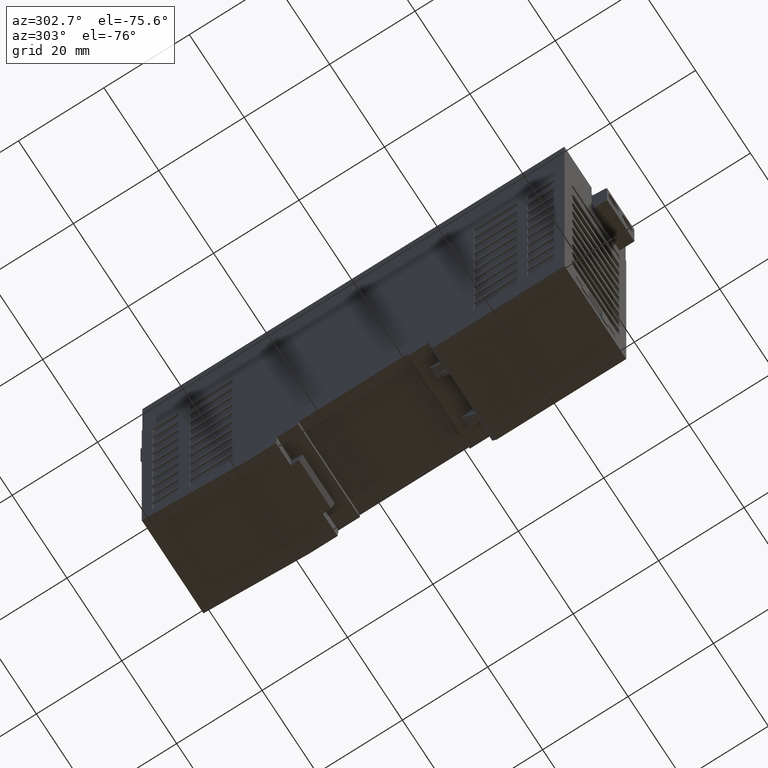
[diagram: clean part render]
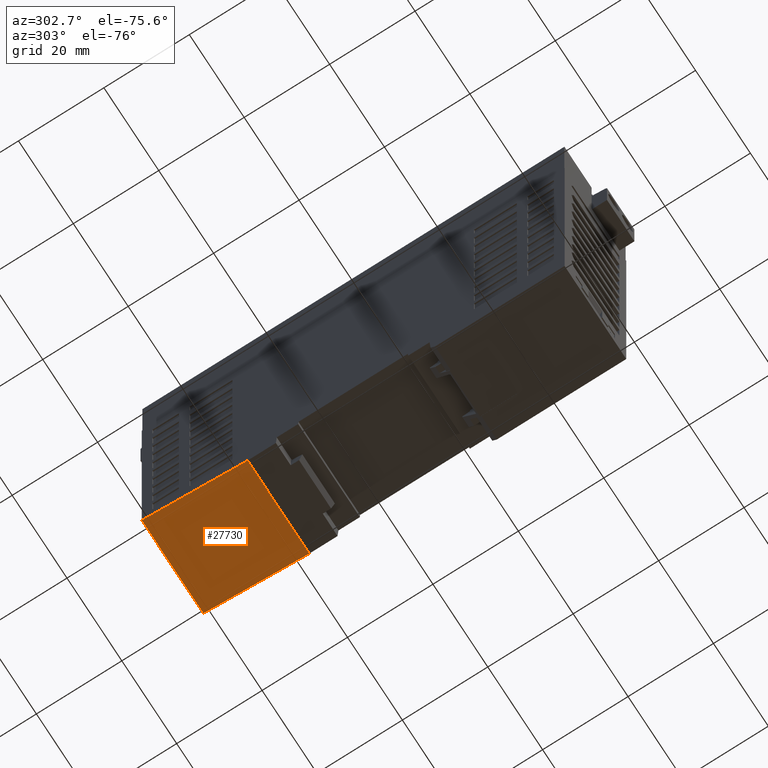
[diagram: same view with one face highlighted and labeled with its STEP entity id]
A machine part, auxiliary view. The second image highlights one B-rep face of the part: STEP entity #27730.
In plain terms, the highlighted planar face has unit normal (0, -0.1908, 0.9816).
Its self-contained STEP definition (entity closure, byte-faithful):
#6920=CARTESIAN_POINT('',(-11.25,0.820631666614119,49.5));
#6930=VERTEX_POINT('',#6920);
#6960=CARTESIAN_POINT('',(-11.25,-4.,24.7));
#6970=DIRECTION('',(0.,0.190808995376495,0.981627183447674));
#6980=VECTOR('',#6970,1.);
#6990=LINE('',#6960,#6980);
#7000=CARTESIAN_POINT('',(-11.25,-4.,24.7));
#7010=VERTEX_POINT('',#7000);
#7020=EDGE_CURVE('',#7010,#6930,#6990,.T.);
#22590=CARTESIAN_POINT('',(11.25,-4.,24.7));
#22600=VERTEX_POINT('',#22590);
#22630=CARTESIAN_POINT('',(11.25,-8.80119363570036,0.));
#22640=DIRECTION('',(0.,-0.190808995376495,-0.981627183447674));
#22650=VECTOR('',#22640,1.);
#22660=LINE('',#22630,#22650);
#22670=CARTESIAN_POINT('',(11.25,0.820631666614119,49.5));
#22680=VERTEX_POINT('',#22670);
#22690=EDGE_CURVE('',#22680,#22600,#22660,.T.);
#27390=CARTESIAN_POINT('',(0.,-4.00000000000001,24.7));
#27400=DIRECTION('',(1.,0.,0.));
#27410=VECTOR('',#27400,1.);
#27420=LINE('',#27390,#27410);
#27430=EDGE_CURVE('',#7010,#22600,#27420,.T.);
#27570=CARTESIAN_POINT('',(-11.25,0.820631666614119,49.5));
#27580=DIRECTION('',(0.,0.981627183447674,-0.190808995376495));
#27590=DIRECTION('',(0.,0.190808995376495,0.981627183447674));
#27600=AXIS2_PLACEMENT_3D('',#27570,#27580,#27590);
#27610=PLANE('',#27600);
#27620=ORIENTED_EDGE('',*,*,#7020,.F.);
#27630=CARTESIAN_POINT('',(0.,0.820631666614119,49.5));
#27640=DIRECTION('',(-1.,0.,0.));
#27650=VECTOR('',#27640,1.);
#27660=LINE('',#27630,#27650);
#27670=EDGE_CURVE('',#22680,#6930,#27660,.T.);
#27680=ORIENTED_EDGE('',*,*,#27670,.T.);
#27690=ORIENTED_EDGE('',*,*,#22690,.F.);
#27700=ORIENTED_EDGE('',*,*,#27430,.T.);
#27710=EDGE_LOOP('',(#27700,#27690,#27680,#27620));
#27720=FACE_OUTER_BOUND('',#27710,.T.);
#27730=ADVANCED_FACE('',(#27720),#27610,.F.);